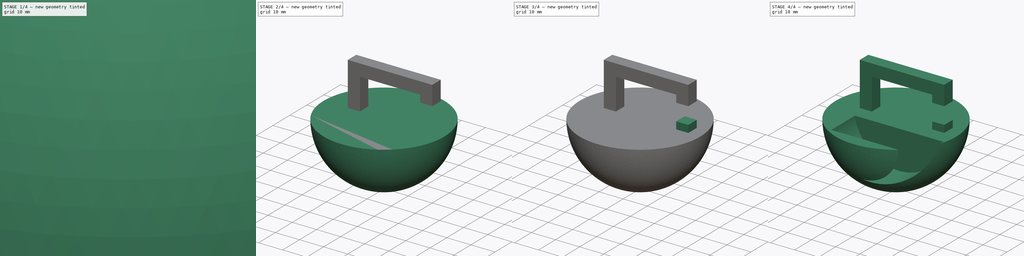
[diagram: build sequence overview — one tinted view per stage of 4, left to right]
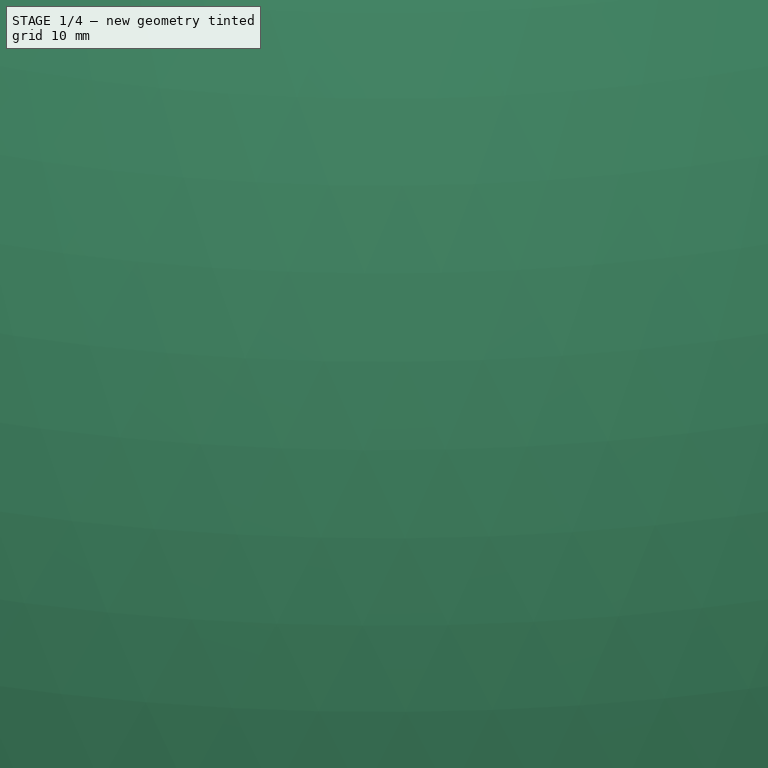
[diagram: stage 1 of 4 — iso view after this stage's code; geometry added in this stage tinted green]
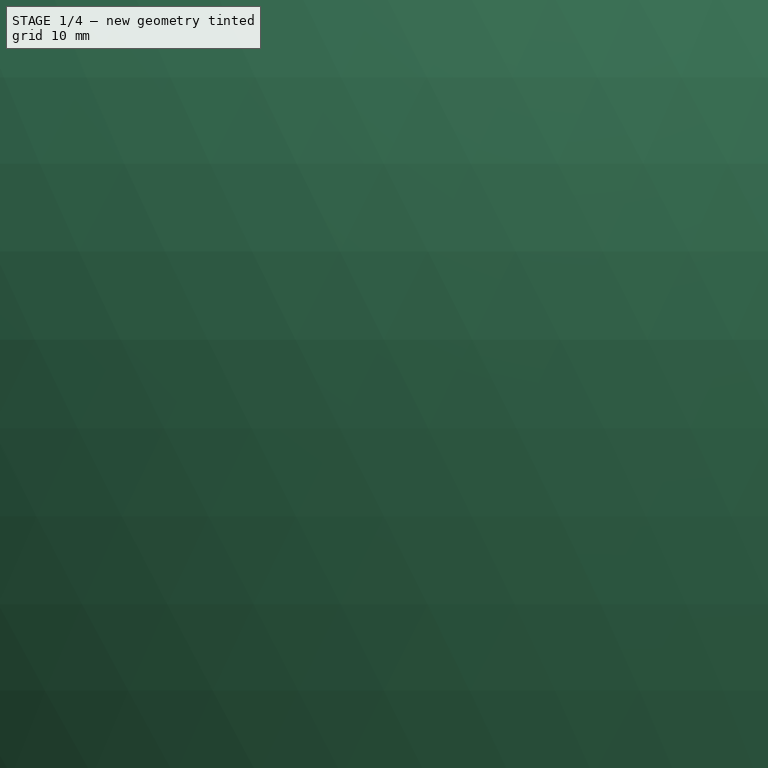
[diagram: stage 1 of 4 — front view after this stage's code; geometry added in this stage tinted green]
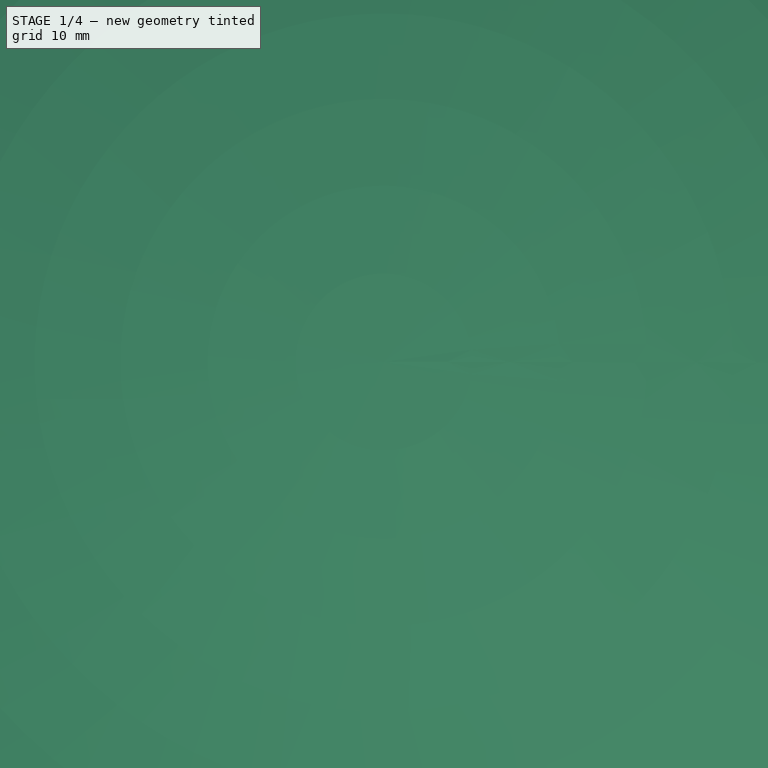
[diagram: stage 1 of 4 — top view after this stage's code; geometry added in this stage tinted green]
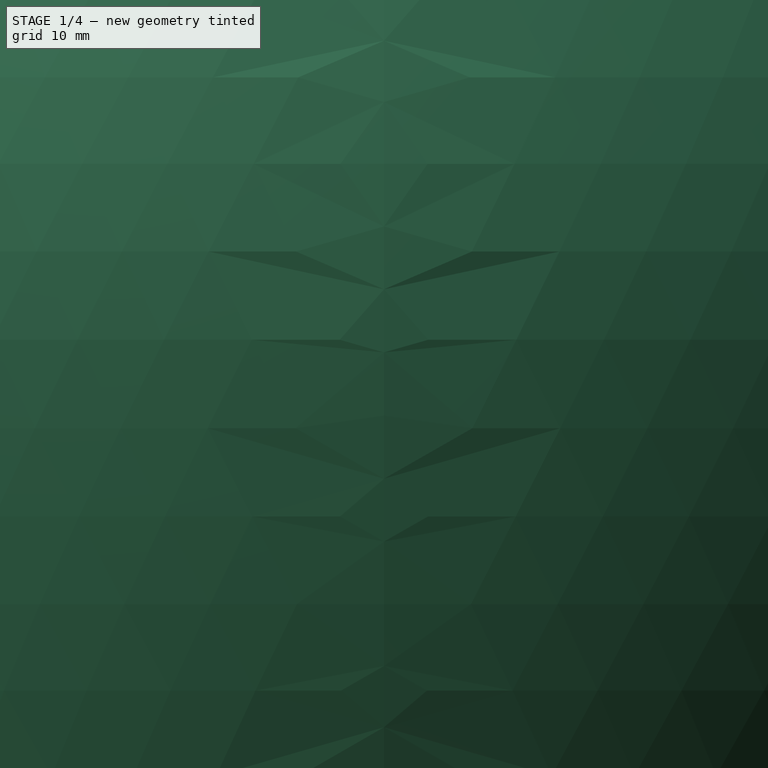
[diagram: stage 1 of 4 — right view after this stage's code; geometry added in this stage tinted green]
FCSTD DOCUMENT  (FreeCAD 0.20R29177 +233 (Git))
Label: pieza_base_hueco
License: Creative Commons Attribution-ShareAlike
LicenseURL: http://creativecommons.org/licenses/by-sa/4.0/
objects: Sketcher::SketchObject×3, Part::Extrusion×3, Part::Cut×3, Part::Sphere×2, Part::Box×1, Part::MultiFuse×1, Part::Fuse×1
note: 14 computed .brp shape members not serialized (recipe doc carries the construction recipe); baked Part::Feature solids carry a one-line shape summary decoded from their .brp

FEATURE [Sketcher::SketchObject] Sketch001
  FullyConstrained = false
  Placement = pos=(0,0,0) rot=(1,0,0;1.5708rad)
  sketch-geometry (8):
    g0: LineSegment StartX=0 StartY=0 StartZ=0 EndX=25 EndY=0 EndZ=0
    g1: LineSegment StartX=0 StartY=0 StartZ=0 EndX=0 EndY=-13 EndZ=0
    g2: LineSegment StartX=25 StartY=0 StartZ=0 EndX=25 EndY=-3 EndZ=0
    g3: LineSegment StartX=0 StartY=-13 StartZ=0 EndX=-5 EndY=-13 EndZ=0
    g4: LineSegment StartX=25 StartY=-3 StartZ=0 EndX=30 EndY=-3 EndZ=0
    g5: LineSegment StartX=-5 StartY=-13 StartZ=0 EndX=-5 EndY=5 EndZ=0
    g6: LineSegment StartX=30 StartY=-3 StartZ=0 EndX=30 EndY=5 EndZ=0
    g7: LineSegment StartX=-5 StartY=5 StartZ=0 EndX=30 EndY=5 EndZ=0
  constraints (20):
    c: Coincident(g0,g-1)
    c: Horizontal(g0)
    c: Coincident(g1,g0)
    c: Vertical(g1)
    c: Coincident(g2,g0)
    c: Vertical(g2)
    c: DistanceY(g2,g2) = 3
    c: Coincident(g3,g1)
    c: Horizontal(g3)
    c: Coincident(g4,g2)
    c: Horizontal(g4)
    c: Coincident(g5,g3)
    c: Coincident(g6,g4)
    c: Vertical(g6)
    c: Vertical(g5)
    c: DistanceY(g5,g5) = 18
    c: DistanceY(g6,g6) = 8
    c: Coincident(g7,g5)
    c: Coincident(g7,g6)
    c: Horizontal(g7)
FEATURE [Part::Extrusion] Extrude
  Base = -> Sketch001
  Dir = (0,5,0)
  DirMode = 0
  FaceMakerClass = Part::FaceMakerBullseye
  LengthFwd = 5
  LengthRev = 0
  Solid = true
  Symmetric = false
FEATURE [Part::Sphere] Sphere  label="Esfera"
  Angle1 = -90
  Angle2 = 90
  Angle3 = 360
  AttacherType = Attacher::AttachEngine3D
  Radius = 150
FEATURE [Part::Sphere] Sphere001  label="Esfera001"
  Angle1 = -90
  Angle2 = 90
  Angle3 = 360
  AttacherType = Attacher::AttachEngine3D
  Radius = 25
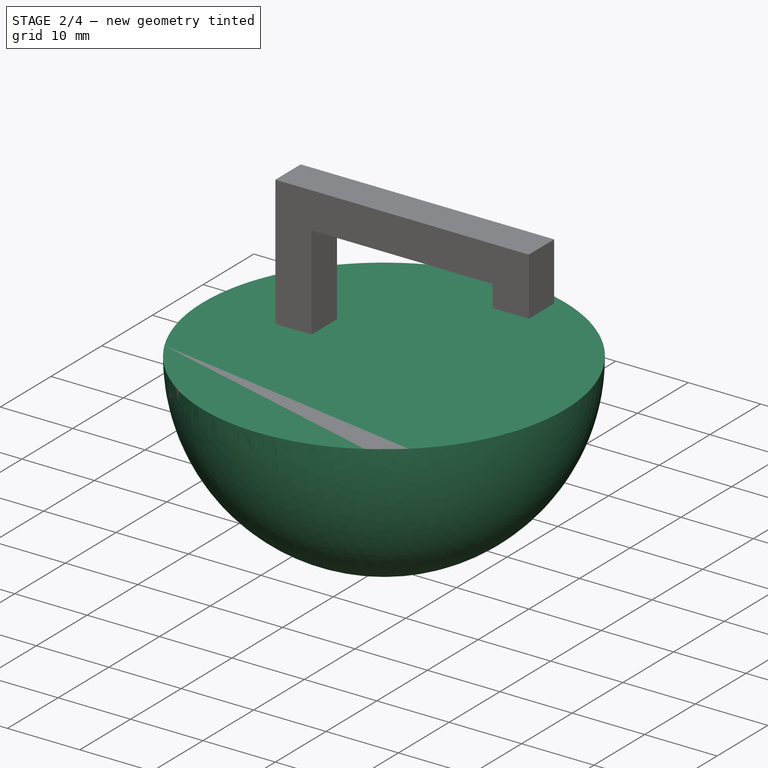
[diagram: stage 2 of 4 — iso view after this stage's code; geometry added in this stage tinted green]
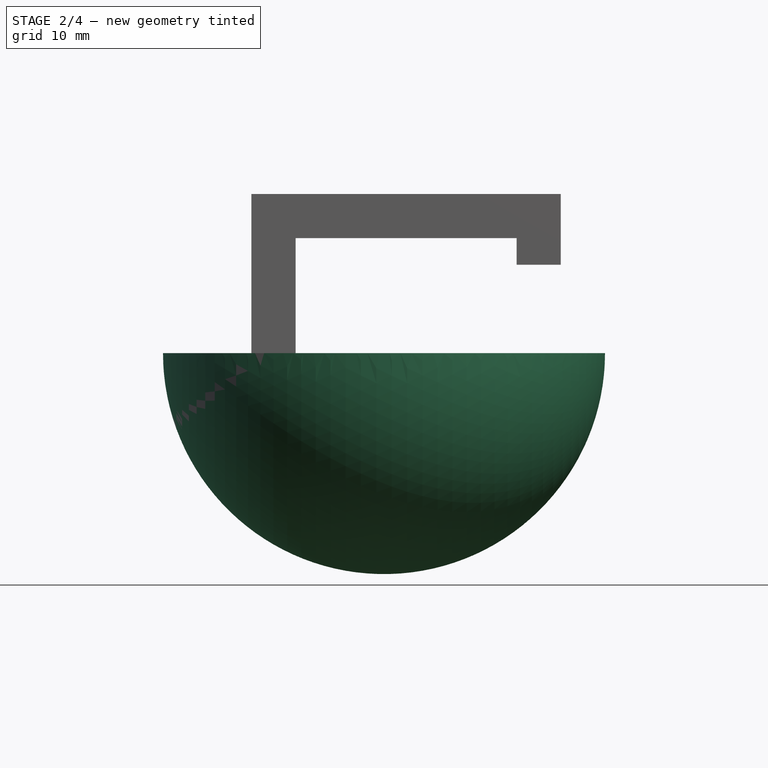
[diagram: stage 2 of 4 — front view after this stage's code; geometry added in this stage tinted green]
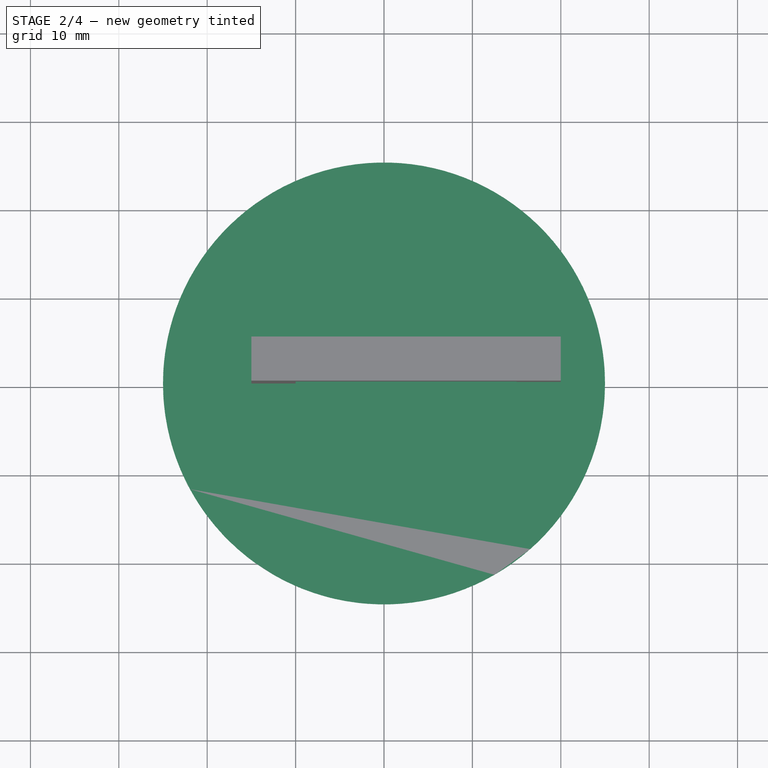
[diagram: stage 2 of 4 — top view after this stage's code; geometry added in this stage tinted green]
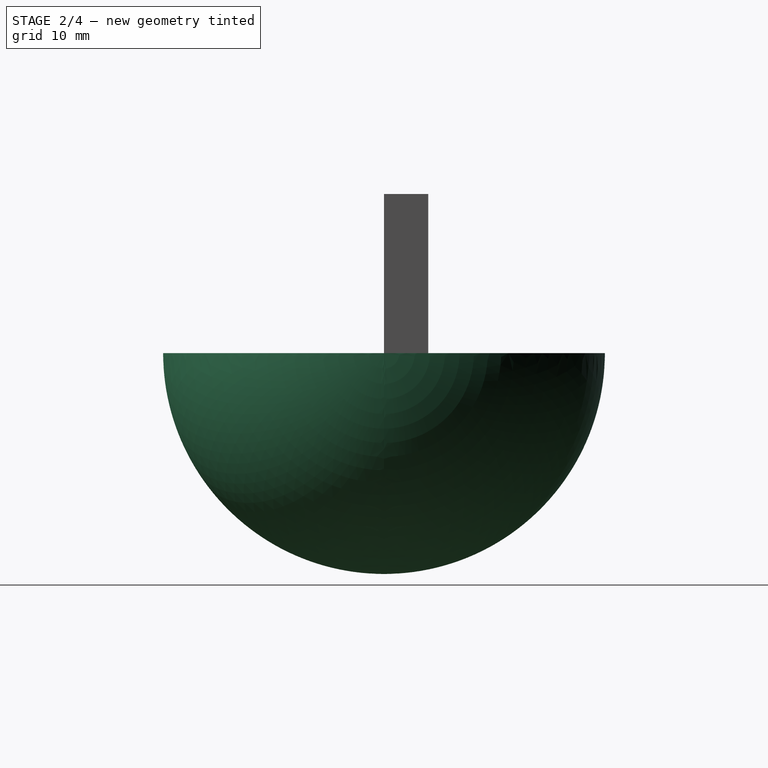
[diagram: stage 2 of 4 — right view after this stage's code; geometry added in this stage tinted green]
FEATURE [Part::Box] Box  label="Cubo"
  AttacherType = Attacher::AttachEngine3D
  Height = 320
  Length = 210
  Placement = pos=(0,-151,-150) rot=(0,0,1;0rad)
  Width = 320
FEATURE [Part::Cut] Cut
  Base = -> Sphere
  Tool = -> Box
FEATURE [Part::Cut] Cut001
  Base = -> Sphere001
  Placement = pos=(10,0,-13) rot=(0,1,0;1.5708rad)
  Tool = -> Cut
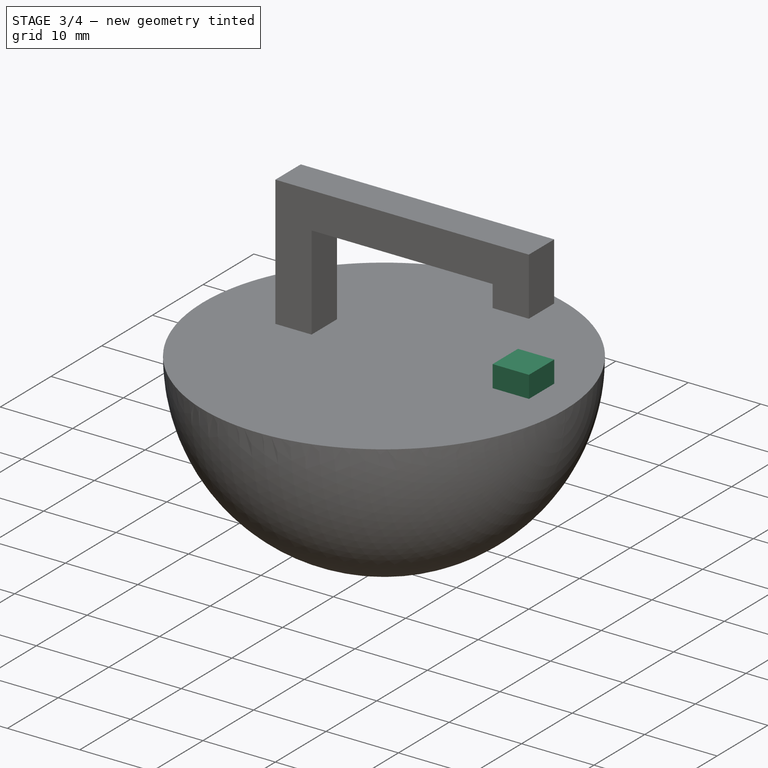
[diagram: stage 3 of 4 — iso view after this stage's code; geometry added in this stage tinted green]
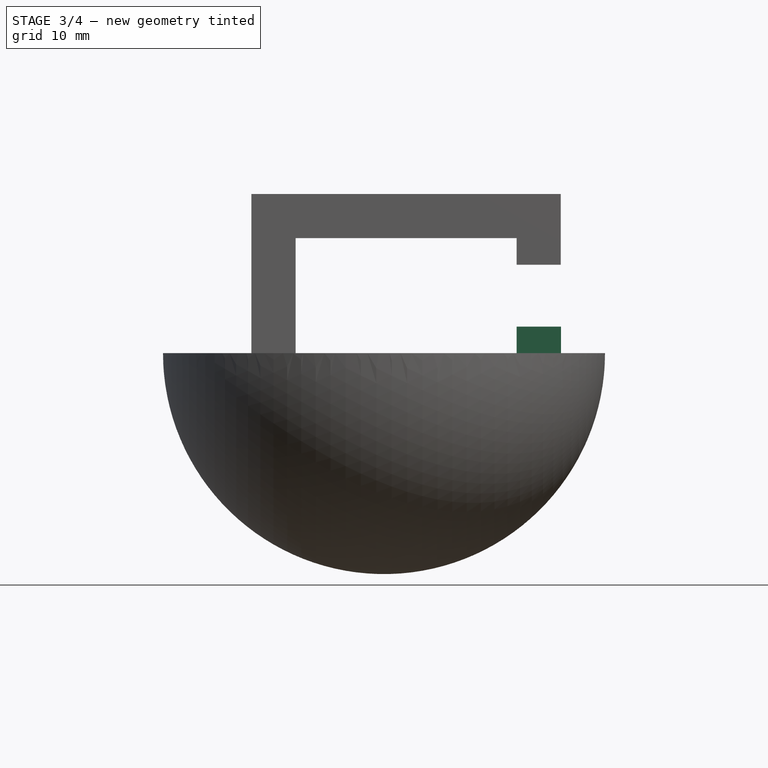
[diagram: stage 3 of 4 — front view after this stage's code; geometry added in this stage tinted green]
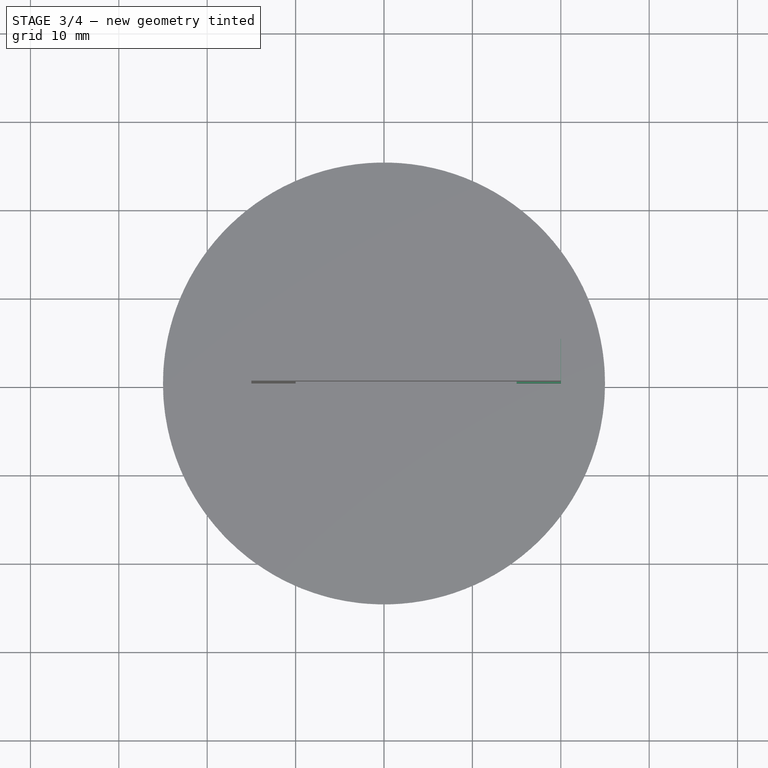
[diagram: stage 3 of 4 — top view after this stage's code; geometry added in this stage tinted green]
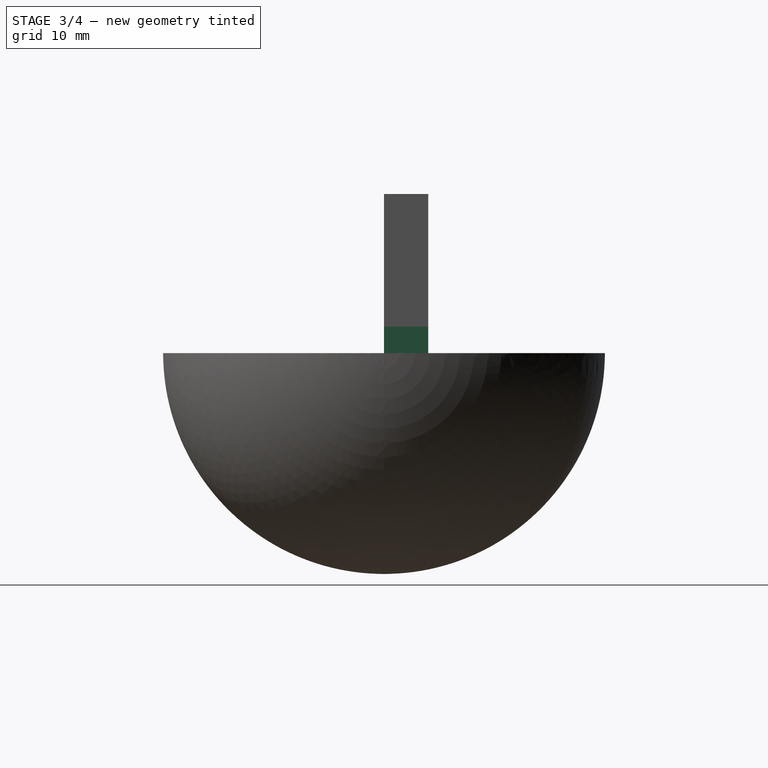
[diagram: stage 3 of 4 — right view after this stage's code; geometry added in this stage tinted green]
FEATURE [Sketcher::SketchObject] Sketch002
  FullyConstrained = false
  Placement = pos=(0,0,0) rot=(1,0,0;1.5708rad)
  sketch-geometry (4):
    g0: LineSegment StartX=25 StartY=-13 StartZ=0 EndX=25 EndY=-10 EndZ=0
    g1: LineSegment StartX=30.0182 StartY=-13 StartZ=0 EndX=30.0182 EndY=-10 EndZ=0
    g2: LineSegment StartX=25 StartY=-10 StartZ=0 EndX=30.0182 EndY=-10 EndZ=0
    g3: LineSegment StartX=25 StartY=-13 StartZ=0 EndX=30.0182 EndY=-13 EndZ=0
  constraints (8):
    c: Vertical(g0)
    c: DistanceY(g0,g0) = 3
    c: Vertical(g1)
    c: DistanceY(g1,g1) = 3
    c: Coincident(g2,g0)
    c: Coincident(g2,g1)
    c: Coincident(g3,g0)
    c: Coincident(g3,g1)
FEATURE [Part::Extrusion] Extrude002
  Base = -> Sketch002
  Dir = (0,5,0)
  DirMode = 0
  FaceMakerClass = Part::FaceMakerBullseye
  LengthFwd = 5
  LengthRev = 0
  Solid = true
  Symmetric = false
FEATURE [Part::MultiFuse] Fusion
  Shapes = -> [Extrude,Cut001]
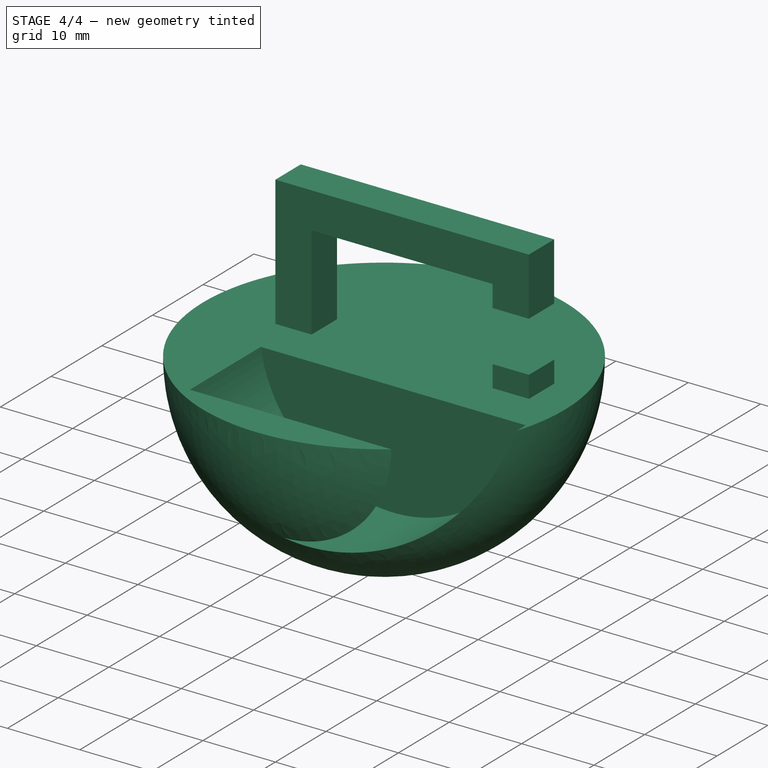
[diagram: stage 4 of 4 — iso view after this stage's code; geometry added in this stage tinted green]
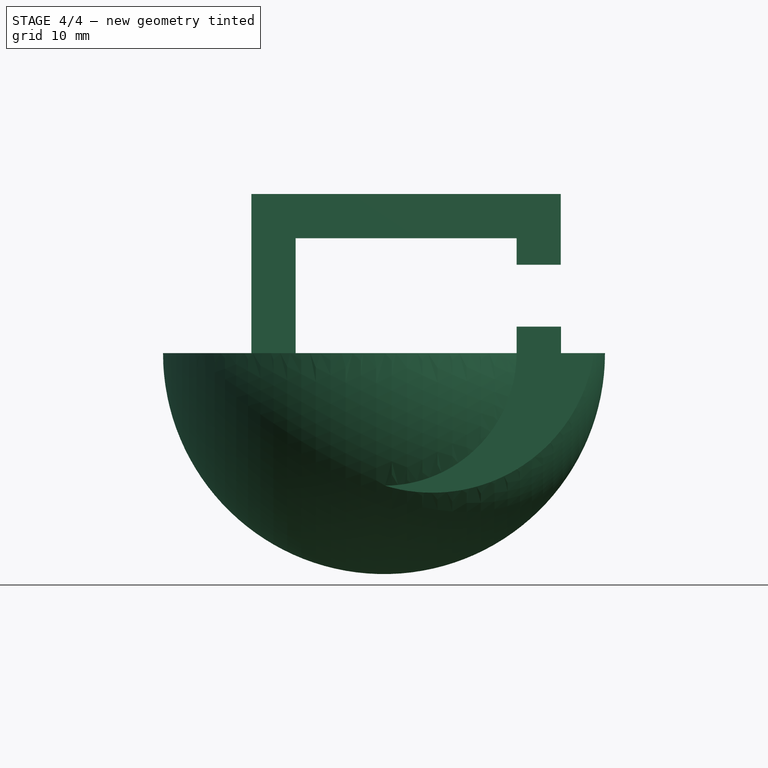
[diagram: stage 4 of 4 — front view after this stage's code; geometry added in this stage tinted green]
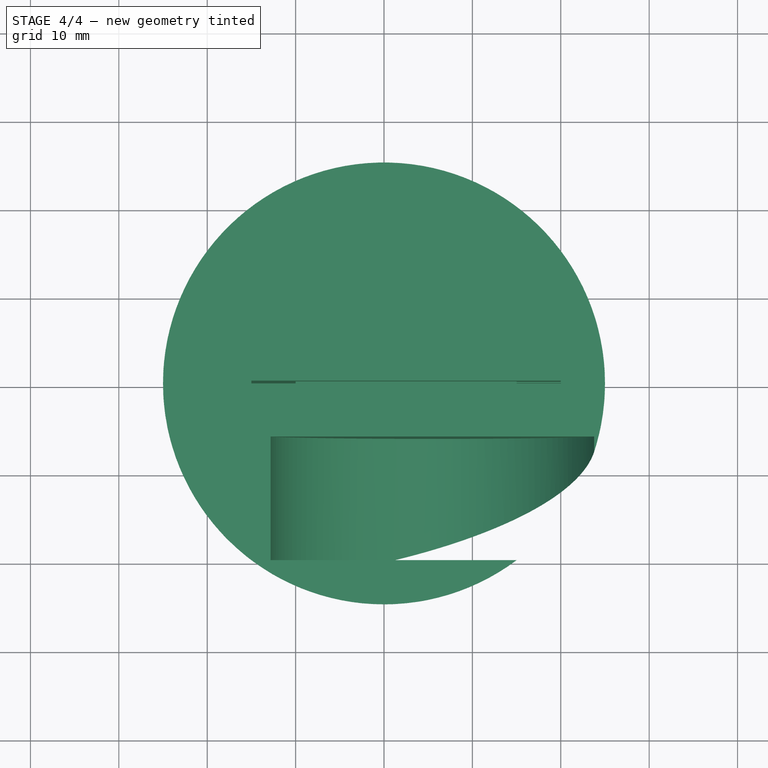
[diagram: stage 4 of 4 — top view after this stage's code; geometry added in this stage tinted green]
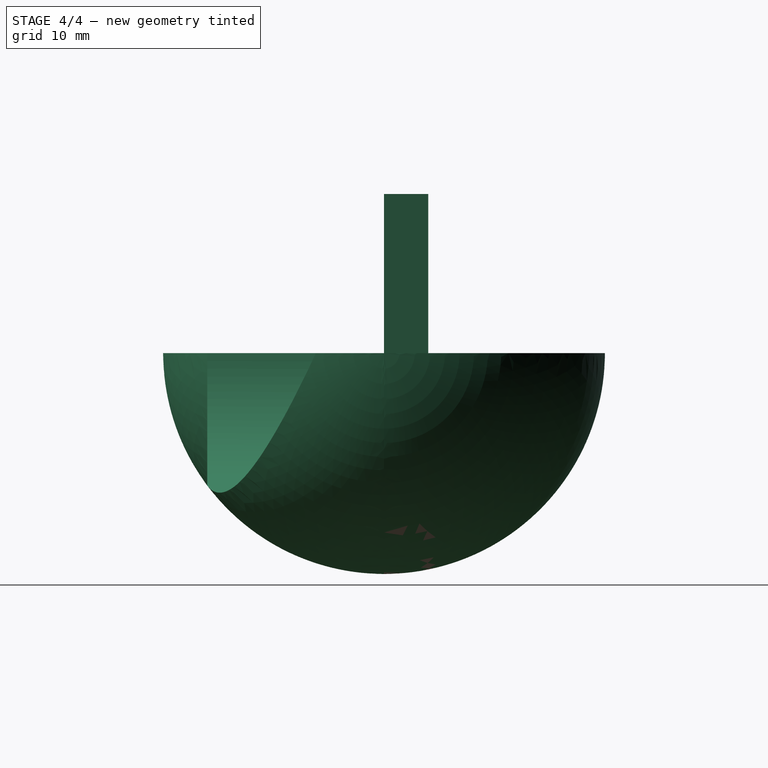
[diagram: stage 4 of 4 — right view after this stage's code; geometry added in this stage tinted green]
FEATURE [Sketcher::SketchObject] Sketch
  FullyConstrained = false
  sketch-geometry (1):
    g0: Circle CenterX=53.4782 CenterY=36.9583 CenterZ=0 NormalX=0 NormalY=0 NormalZ=1 AngleXU=0 Radius=18.5
  constraints (1):
    c: Radius(g0) = 18.5
FEATURE [Part::Extrusion] Extrude001  label="hueco"
  Base = -> Sketch
  Dir = (0,0,1)
  DirMode = 2
  FaceMakerClass = Part::FaceMakerBullseye
  LengthFwd = 14
  LengthRev = 0
  Placement = pos=(-48,-6,-9.25) rot=(1,0,0;1.5708rad)
  Solid = true
  Symmetric = false
FEATURE [Part::Fuse] Fusion001
  Base = -> Fusion
  Placement = pos=(-10,0,38) rot=(0,0,1;0rad)
  Tool = -> Extrude002
FEATURE [Part::Cut] Cut002  label="base"
  Base = -> Fusion001
  Tool = -> Extrude001
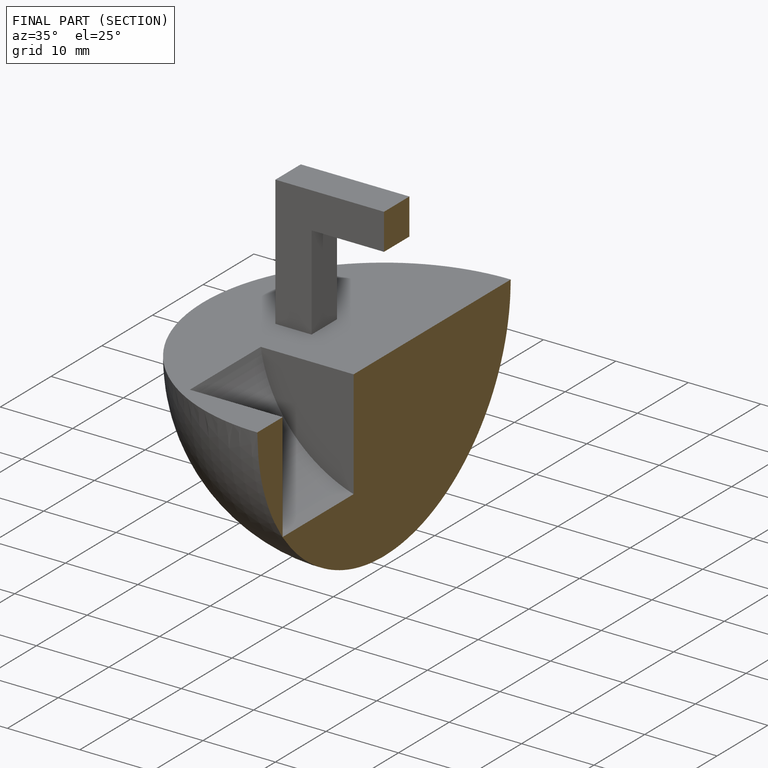
[diagram: finished part — half-section view (interior)]
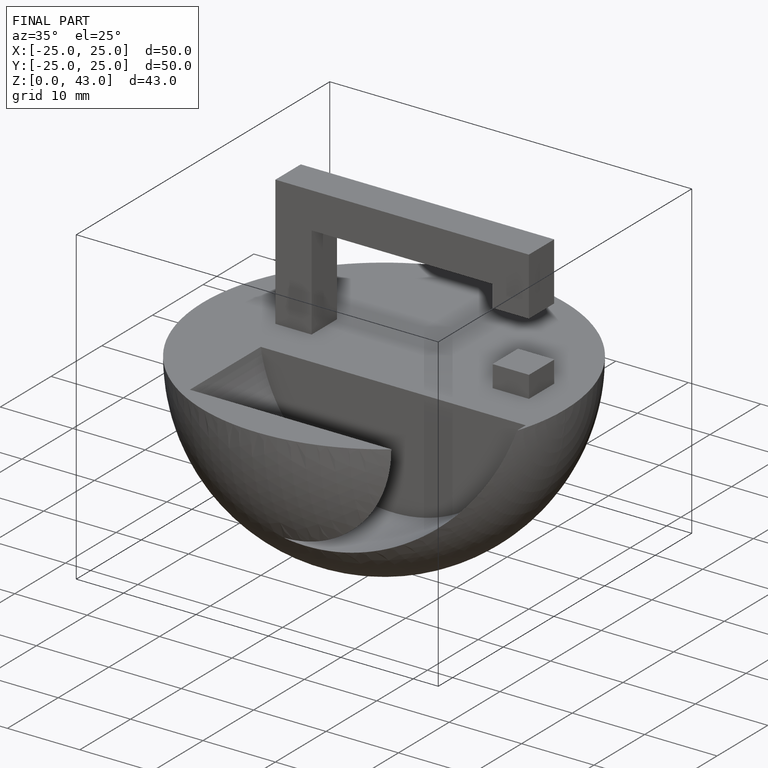
[diagram: finished part — iso view with bounding-box wireframe]
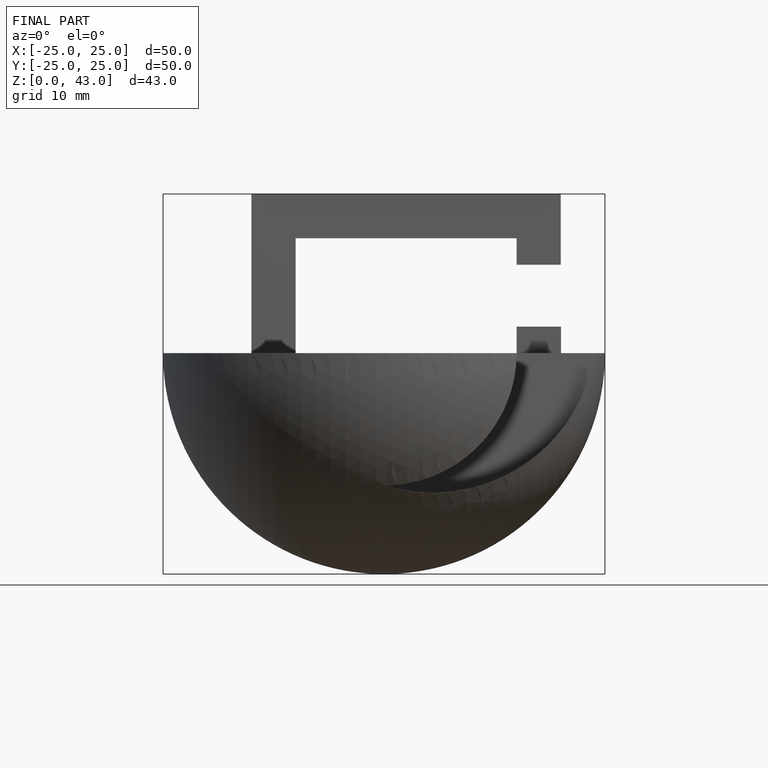
[diagram: finished part — front view with bounding-box wireframe]
